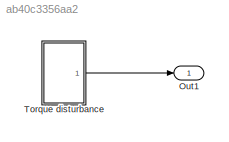
MODEL slx_ab40c3356aa2
KIND model
CONFIG AbsTol = auto
CONFIG EnableMultiTasking = off
CONFIG FixedStep = auto
CONFIG MaxStep = auto
CONFIG MinStep = auto
CONFIG RelTol = 1e-3
CONFIG SampleTimeConstraint = Unconstrained
CONFIG Solver = VariableStepAuto
CONFIG SolverName = VariableStepAuto
CONFIG StartTime = 0.0
CONFIG StopTime = 10.0
WORKSPACE source: external: MAT-File  (data not in archive)
BLOCK [Outport] Out1
  IconDisplay = Port number
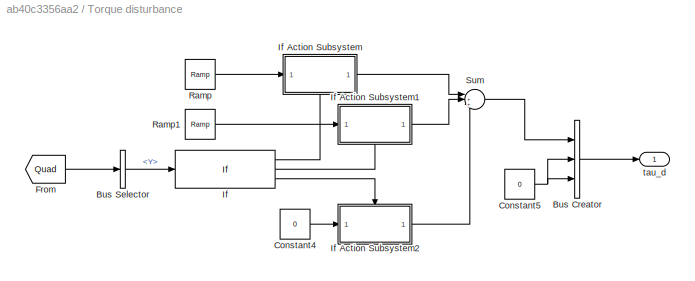
BLOCK [SubSystem] Torque disturbance
  Ports = [0, 1]
  RequestExecContextInheritance = off
  Variant = off
BLOCK [BusCreator] Torque disturbance/Bus Creator
  DisplayOption = bar
  InheritFromInputs = on
  Inputs = 3
  Ports = [3, 1]
BLOCK [BusSelector] Torque disturbance/Bus Selector
  OutputAsBus = off
  OutputSignals = Y
  Ports = [1, 1]
BLOCK [Constant] Torque disturbance/Constant4
  Value = 0
BLOCK [Constant] Torque disturbance/Constant5
  Value = 0
BLOCK [From] Torque disturbance/From
  GotoTag = Quad
BLOCK [If] Torque disturbance/If
  ElseIfExpressions = u1 < -0.2
  IfExpression = u1 > 0.2
  Ports = [1, 3]
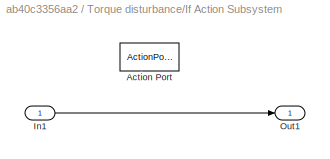
BLOCK [SubSystem] Torque disturbance/If Action Subsystem
  Ports = [1, 1, 0, 0, 0, 0, 0, 1]
  RequestExecContextInheritance = off
  TreatAsAtomicUnit = on
  Variant = off
BLOCK [ActionPort] Torque disturbance/If Action Subsystem/Action Port
  ActionType = then
BLOCK [Inport] Torque disturbance/If Action Subsystem/In1
  IconDisplay = Port number
BLOCK [Outport] Torque disturbance/If Action Subsystem/Out1
  IconDisplay = Port number
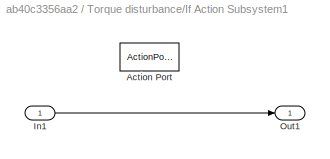
BLOCK [SubSystem] Torque disturbance/If Action Subsystem1
  Ports = [1, 1, 0, 0, 0, 0, 0, 1]
  RequestExecContextInheritance = off
  TreatAsAtomicUnit = on
  Variant = off
BLOCK [ActionPort] Torque disturbance/If Action Subsystem1/Action Port
  ActionType = elseif
BLOCK [Inport] Torque disturbance/If Action Subsystem1/In1
  IconDisplay = Port number
BLOCK [Outport] Torque disturbance/If Action Subsystem1/Out1
  IconDisplay = Port number
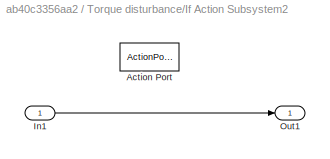
BLOCK [SubSystem] Torque disturbance/If Action Subsystem2
  Ports = [1, 1, 0, 0, 0, 0, 0, 1]
  RequestExecContextInheritance = off
  TreatAsAtomicUnit = on
  Variant = off
BLOCK [ActionPort] Torque disturbance/If Action Subsystem2/Action Port
  ActionType = else
BLOCK [Inport] Torque disturbance/If Action Subsystem2/In1
  IconDisplay = Port number
BLOCK [Outport] Torque disturbance/If Action Subsystem2/Out1
  IconDisplay = Port number
BLOCK [Reference] Torque disturbance/Ramp  REF=simulink/Sources/Ramp
  Ports = [0, 1]
  SourceBlock = simulink/Sources/Ramp
  SourceProductBaseCode = SL
  SourceProductName = Simulink
  SourceType = Ramp
BLOCK [Reference] Torque disturbance/Ramp1  REF=simulink/Sources/Ramp
  Ports = [0, 1]
  SourceBlock = simulink/Sources/Ramp
  SourceProductBaseCode = SL
  SourceProductName = Simulink
  SourceType = Ramp
BLOCK [Sum] Torque disturbance/Sum
  IconShape = round
  InputSameDT = off
  Inputs = |+++
  OutDataTypeStr = Inherit: Inherit via internal rule
  Ports = [3, 1]
  SaturateOnIntegerOverflow = off
BLOCK [Outport] Torque disturbance/tau_d
  IconDisplay = Port number
LINE Torque disturbance/Bus Creator:1 -> Torque disturbance/tau_d:1
LINE Torque disturbance/Bus Selector:1 -> Torque disturbance/If:1
LINE Torque disturbance/Constant4:1 -> Torque disturbance/If Action Subsystem2:1
NET Torque disturbance/Constant5:1 -> Torque disturbance/Bus Creator:2, Torque disturbance/Bus Creator:3
LINE Torque disturbance/From:1 -> Torque disturbance/Bus Selector:1
LINE Torque disturbance/If Action Subsystem/In1:1 -> Torque disturbance/If Action Subsystem/Out1:1
LINE Torque disturbance/If Action Subsystem1/In1:1 -> Torque disturbance/If Action Subsystem1/Out1:1
LINE Torque disturbance/If Action Subsystem1:1 -> Torque disturbance/Sum:2
LINE Torque disturbance/If Action Subsystem2/In1:1 -> Torque disturbance/If Action Subsystem2/Out1:1
LINE Torque disturbance/If Action Subsystem2:1 -> Torque disturbance/Sum:3
LINE Torque disturbance/If Action Subsystem:1 -> Torque disturbance/Sum:1
LINE Torque disturbance/If:1 -> Torque disturbance/If Action Subsystem:ifaction
LINE Torque disturbance/If:2 -> Torque disturbance/If Action Subsystem1:ifaction
LINE Torque disturbance/If:3 -> Torque disturbance/If Action Subsystem2:ifaction
LINE Torque disturbance/Ramp1:1 -> Torque disturbance/If Action Subsystem1:1
LINE Torque disturbance/Ramp:1 -> Torque disturbance/If Action Subsystem:1
LINE Torque disturbance/Sum:1 -> Torque disturbance/Bus Creator:1
LINE Torque disturbance:1 -> Out1:1
note: NET lines group one-source signal fan-out (src -> all destinations, sorted); 1:1 wires keep LINE
